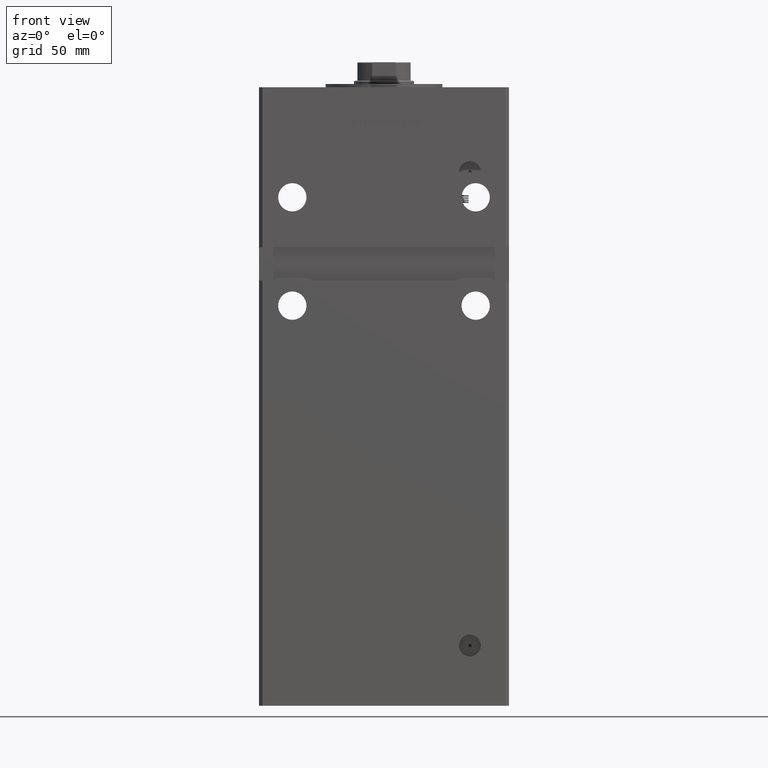
[diagram: clean part render]
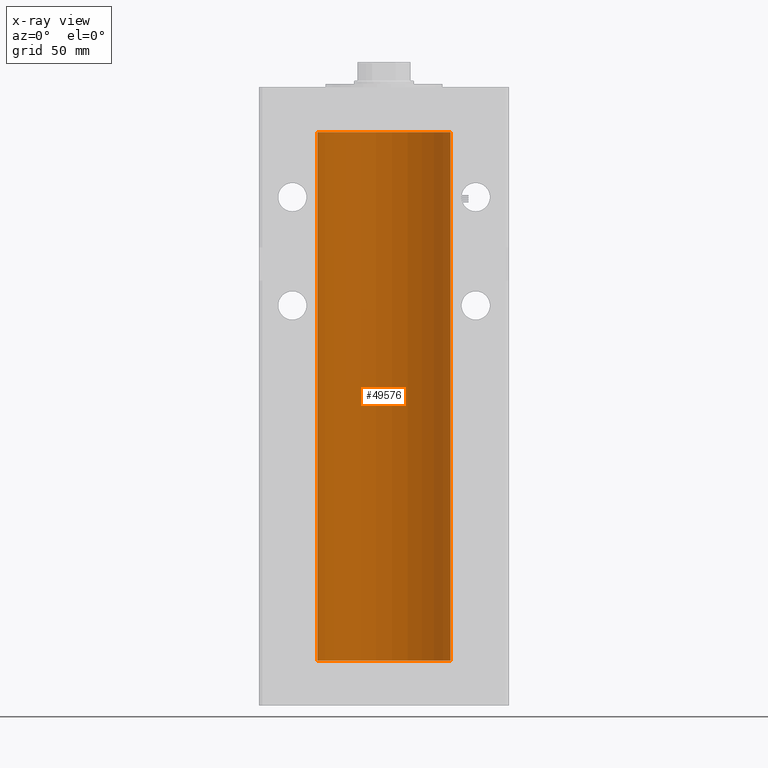
[diagram: x-ray — body ghosted, one internal face saturated and labeled with its STEP entity id]
A machine part, front view, then the same camera in x-ray: the body is ghosted and one INTERNAL B-rep face — a face not visible from any outside direction — is saturated and labeled: STEP entity #49576.
In plain terms, the highlighted cylindrical surface (partial cylindrical patch) has radius 40 mm, axis along (-0, -0, -1).
Its self-contained STEP definition (entity closure, byte-faithful):
#349 = AXIS2_PLACEMENT_3D ( 'NONE', #2690, #28468, #45478 ) ;
#1993 = DIRECTION ( 'NONE',  ( -0.000000000000000000, -0.000000000000000000, -1.000000000000000000 ) ) ;
#2690 = CARTESIAN_POINT ( 'NONE',  ( 0.000000000000000000, 0.000000000000000000, 0.000000000000000000 ) ) ;
#3530 = LINE ( 'NONE', #51121, #9630 ) ;
#4303 = CARTESIAN_POINT ( 'NONE',  ( 0.000000000000000000, 0.000000000000000000, 317.0000000000000000 ) ) ;
#5383 = ORIENTED_EDGE ( 'NONE', *, *, #25520, .T. ) ;
#8351 = CYLINDRICAL_SURFACE ( 'NONE', #40228, 40.00000000000000000 ) ;
#9373 = CIRCLE ( 'NONE', #349, 40.00000000000000000 ) ;
#9630 = VECTOR ( 'NONE', #32987, 1000.000000000000000 ) ;
#9643 = CARTESIAN_POINT ( 'NONE',  ( 40.00000000000000000, 4.898587196589413026E-15, 0.000000000000000000 ) ) ;
#9657 = CARTESIAN_POINT ( 'NONE',  ( 40.00000000000000000, 4.898587196589413026E-15, 317.0000000000000000 ) ) ;
#13071 = CARTESIAN_POINT ( 'NONE',  ( -40.00000000000000000, 0.000000000000000000, 0.000000000000000000 ) ) ;
#13353 = AXIS2_PLACEMENT_3D ( 'NONE', #4303, #35166, #13915 ) ;
#13915 = DIRECTION ( 'NONE',  ( 1.000000000000000000, 0.000000000000000000, 0.000000000000000000 ) ) ;
#14242 = CIRCLE ( 'NONE', #13353, 40.00000000000000000 ) ;
#15918 = ORIENTED_EDGE ( 'NONE', *, *, #28020, .T. ) ;
#19625 = VERTEX_POINT ( 'NONE', #30982 ) ;
#21371 = ORIENTED_EDGE ( 'NONE', *, *, #26000, .F. ) ;
#21422 = VECTOR ( 'NONE', #1993, 1000.000000000000000 ) ;
#22237 = CARTESIAN_POINT ( 'NONE',  ( 0.000000000000000000, 0.000000000000000000, 317.0000000000000000 ) ) ;
#25118 = VERTEX_POINT ( 'NONE', #9643 ) ;
#25520 = EDGE_CURVE ( 'NONE', #19625, #25874, #3530, .T. ) ;
#25874 = VERTEX_POINT ( 'NONE', #13071 ) ;
#26000 = EDGE_CURVE ( 'NONE', #35564, #25118, #35451, .T. ) ;
#28020 = EDGE_CURVE ( 'NONE', #35564, #19625, #14242, .T. ) ;
#28468 = DIRECTION ( 'NONE',  ( -0.000000000000000000, 0.000000000000000000, 1.000000000000000000 ) ) ;
#29401 = CARTESIAN_POINT ( 'NONE',  ( 40.00000000000000000, 4.898587196589413026E-15, 317.0000000000000000 ) ) ;
#30158 = DIRECTION ( 'NONE',  ( -0.000000000000000000, -0.000000000000000000, -1.000000000000000000 ) ) ;
#30982 = CARTESIAN_POINT ( 'NONE',  ( -40.00000000000000000, 0.000000000000000000, 317.0000000000000000 ) ) ;
#32987 = DIRECTION ( 'NONE',  ( -0.000000000000000000, -0.000000000000000000, -1.000000000000000000 ) ) ;
#35166 = DIRECTION ( 'NONE',  ( -0.000000000000000000, 0.000000000000000000, 1.000000000000000000 ) ) ;
#35451 = LINE ( 'NONE', #9657, #21422 ) ;
#35564 = VERTEX_POINT ( 'NONE', #29401 ) ;
#39495 = DIRECTION ( 'NONE',  ( -1.000000000000000000, 0.000000000000000000, 0.000000000000000000 ) ) ;
#39667 = EDGE_LOOP ( 'NONE', ( #21371, #15918, #5383, #51739 ) ) ;
#40228 = AXIS2_PLACEMENT_3D ( 'NONE', #22237, #30158, #39495 ) ;
#43186 = FACE_OUTER_BOUND ( 'NONE', #39667, .T. ) ;
#45478 = DIRECTION ( 'NONE',  ( 1.000000000000000000, 0.000000000000000000, 0.000000000000000000 ) ) ;
#47504 = EDGE_CURVE ( 'NONE', #25118, #25874, #9373, .T. ) ;
#49576 = ADVANCED_FACE ( 'NONE', ( #43186 ), #8351, .F. ) ;
#51121 = CARTESIAN_POINT ( 'NONE',  ( -40.00000000000000000, 0.000000000000000000, 317.0000000000000000 ) ) ;
#51739 = ORIENTED_EDGE ( 'NONE', *, *, #47504, .F. ) ;